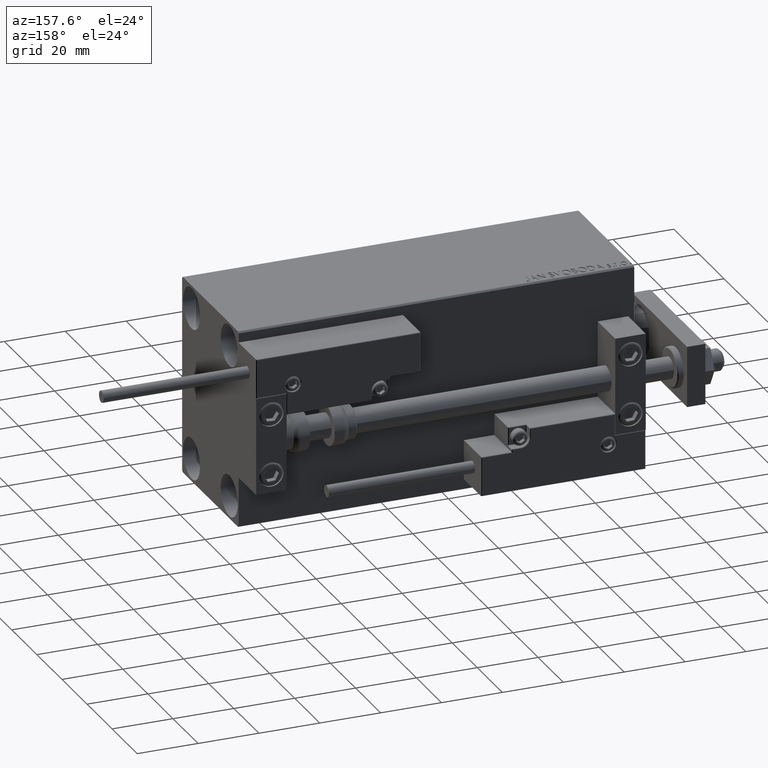
[diagram: clean part render]
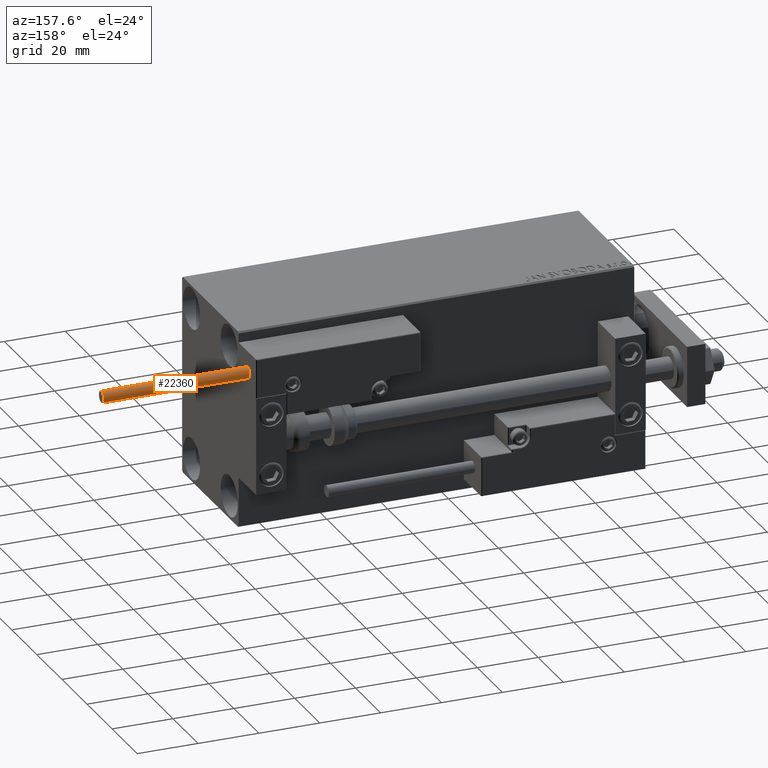
[diagram: same view with one face highlighted and labeled with its STEP entity id]
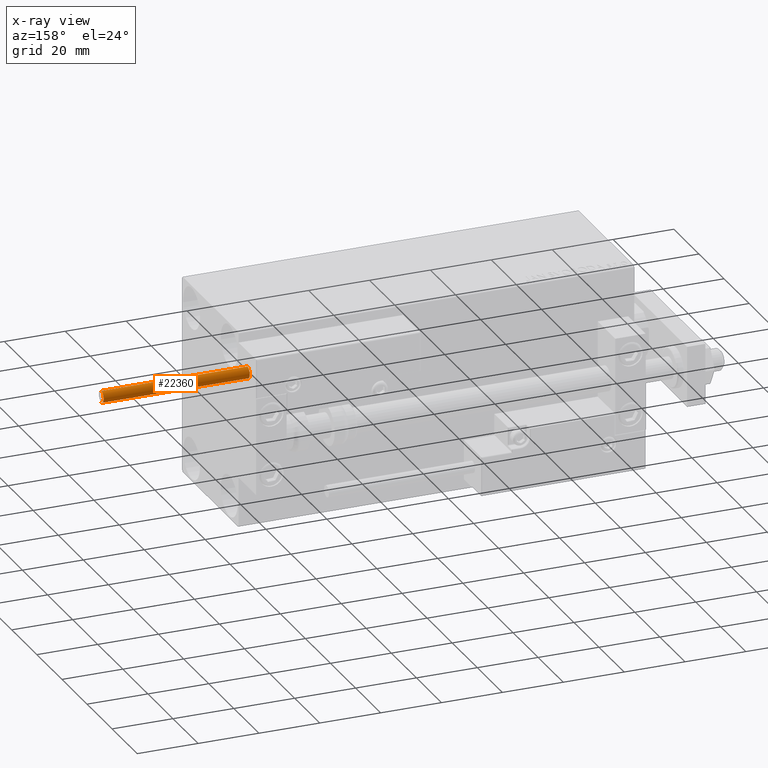
[diagram: x-ray of the same camera — body ghosted, the highlighted face saturated]
A machine part, auxiliary view. The second image highlights one B-rep face of the part: STEP entity #22360.
The next image is the same camera in x-ray: the body ghosted, the highlighted face saturated — about 0% of this face is hidden behind the body in this view.
In plain terms, the highlighted cylindrical surface (edge-blend (fillet) strip) has radius 1.9 mm, axis along (-1, -0, 0).
Its self-contained STEP definition (entity closure, byte-faithful):
#697 = EDGE_LOOP ( 'NONE', ( #33707, #26718, #32597, #20085 ) ) ;
#1603 = VERTEX_POINT ( 'NONE', #32727 ) ;
#5347 = CARTESIAN_POINT ( 'NONE',  ( 0.000000000000000000, 0.000000000000000000, 0.000000000000000000 ) ) ;
#7317 = AXIS2_PLACEMENT_3D ( 'NONE', #44860, #37471, #26018 ) ;
#7590 = EDGE_CURVE ( 'NONE', #47176, #40878, #33493, .T. ) ;
#7894 = EDGE_CURVE ( 'NONE', #47176, #24408, #16422, .T. ) ;
#8517 = CARTESIAN_POINT ( 'NONE',  ( 1.899999999999999467, 2.326828918379970872E-16, 48.00000000000000000 ) ) ;
#10089 = DIRECTION ( 'NONE',  ( 0.000000000000000000, 0.000000000000000000, 1.000000000000000000 ) ) ;
#11388 = CIRCLE ( 'NONE', #40671, 1.899999999999999467 ) ;
#11513 = AXIS2_PLACEMENT_3D ( 'NONE', #21556, #10089, #25634 ) ;
#12003 = CARTESIAN_POINT ( 'NONE',  ( 1.899999999999999467, 2.326828918379970872E-16, 48.00000000000000000 ) ) ;
#12305 = CARTESIAN_POINT ( 'NONE',  ( 1.899999999999999467, 2.326828918379970872E-16, 0.000000000000000000 ) ) ;
#16422 = LINE ( 'NONE', #8517, #21352 ) ;
#18659 = LINE ( 'NONE', #49956, #34503 ) ;
#20085 = ORIENTED_EDGE ( 'NONE', *, *, #32592, .F. ) ;
#20379 = DIRECTION ( 'NONE',  ( 0.000000000000000000, 0.000000000000000000, 1.000000000000000000 ) ) ;
#21352 = VECTOR ( 'NONE', #39596, 1000.000000000000000 ) ;
#21556 = CARTESIAN_POINT ( 'NONE',  ( 0.000000000000000000, 0.000000000000000000, 48.00000000000000000 ) ) ;
#22360 = ADVANCED_FACE ( 'NONE', ( #41057 ), #48934, .T. ) ;
#22540 = EDGE_CURVE ( 'NONE', #24408, #1603, #11388, .T. ) ;
#24408 = VERTEX_POINT ( 'NONE', #12305 ) ;
#25634 = DIRECTION ( 'NONE',  ( 1.000000000000000000, 0.000000000000000000, 0.000000000000000000 ) ) ;
#26018 = DIRECTION ( 'NONE',  ( -1.000000000000000000, 0.000000000000000000, 0.000000000000000000 ) ) ;
#26718 = ORIENTED_EDGE ( 'NONE', *, *, #7894, .T. ) ;
#27052 = DIRECTION ( 'NONE',  ( -0.000000000000000000, -0.000000000000000000, -1.000000000000000000 ) ) ;
#28053 = DIRECTION ( 'NONE',  ( 1.000000000000000000, 0.000000000000000000, 0.000000000000000000 ) ) ;
#32592 = EDGE_CURVE ( 'NONE', #40878, #1603, #18659, .T. ) ;
#32597 = ORIENTED_EDGE ( 'NONE', *, *, #22540, .T. ) ;
#32727 = CARTESIAN_POINT ( 'NONE',  ( -1.899999999999999467, 0.000000000000000000, 0.000000000000000000 ) ) ;
#33493 = CIRCLE ( 'NONE', #11513, 1.899999999999999467 ) ;
#33707 = ORIENTED_EDGE ( 'NONE', *, *, #7590, .F. ) ;
#34503 = VECTOR ( 'NONE', #27052, 1000.000000000000000 ) ;
#37471 = DIRECTION ( 'NONE',  ( -0.000000000000000000, -0.000000000000000000, -1.000000000000000000 ) ) ;
#39596 = DIRECTION ( 'NONE',  ( -0.000000000000000000, -0.000000000000000000, -1.000000000000000000 ) ) ;
#40671 = AXIS2_PLACEMENT_3D ( 'NONE', #5347, #20379, #28053 ) ;
#40878 = VERTEX_POINT ( 'NONE', #48248 ) ;
#41057 = FACE_OUTER_BOUND ( 'NONE', #697, .T. ) ;
#44860 = CARTESIAN_POINT ( 'NONE',  ( 0.000000000000000000, 0.000000000000000000, 48.00000000000000000 ) ) ;
#47176 = VERTEX_POINT ( 'NONE', #12003 ) ;
#48248 = CARTESIAN_POINT ( 'NONE',  ( -1.899999999999999467, 0.000000000000000000, 48.00000000000000000 ) ) ;
#48934 = CYLINDRICAL_SURFACE ( 'NONE', #7317, 1.899999999999999467 ) ;
#49956 = CARTESIAN_POINT ( 'NONE',  ( -1.899999999999999467, 0.000000000000000000, 48.00000000000000000 ) ) ;